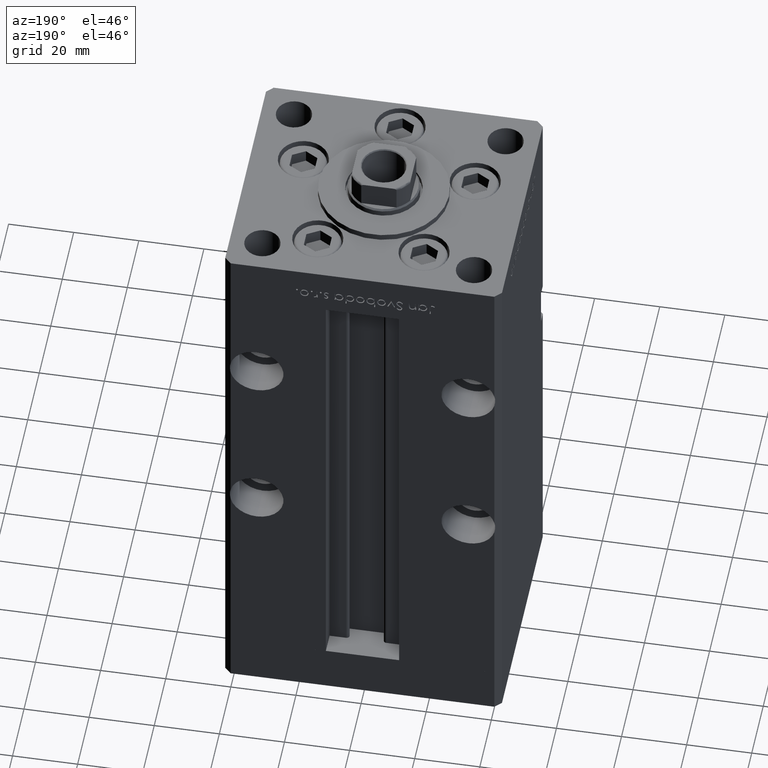
[diagram: clean part render]
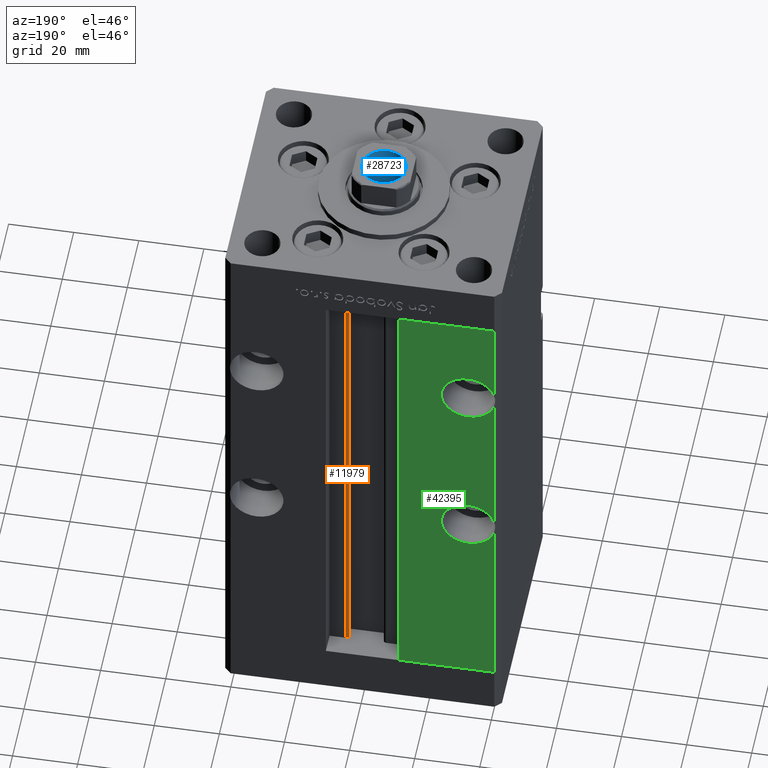
[diagram: same view with three faces highlighted in distinct colors, each labeled with its STEP entity id]
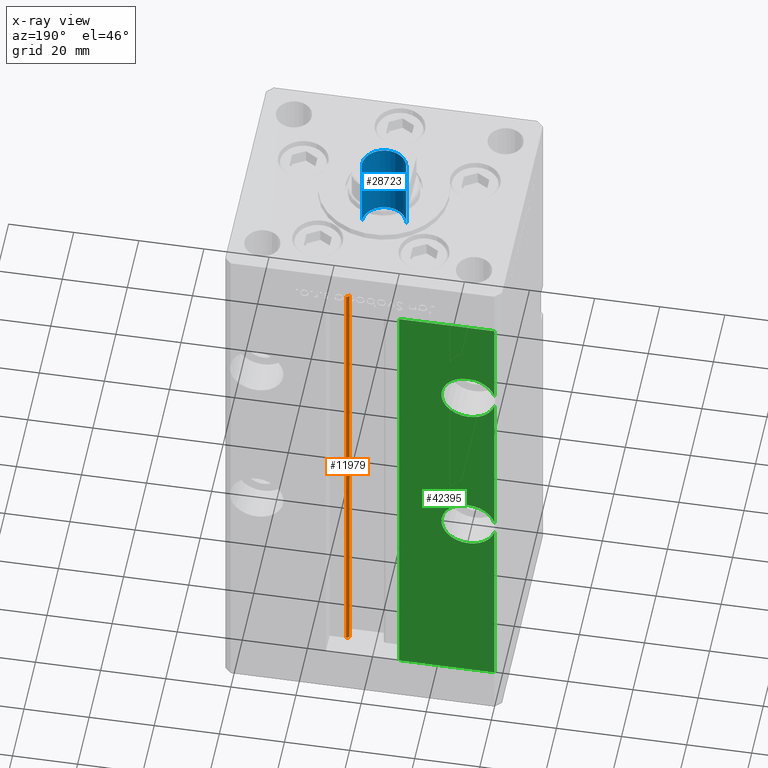
[diagram: x-ray of the same camera — body ghosted, the three highlighted faces saturated]
A machine part, auxiliary view with three faces highlighted in distinct colors.
The next image is the same camera in x-ray (body ghosted, the three faces saturated) — at least one of them is partly hidden behind the body in this view.
Their STEP definitions:

[orange] entity #11979 — the highlighted cylindrical surface (edge-blend (fillet) strip) has radius 0.9333 mm, axis along (0, 0, 1).
#124 = ORIENTED_EDGE ( 'NONE', *, *, #24910, .F. ) ;
#1605 = DIRECTION ( 'NONE',  ( -0.000000000000000000, -0.000000000000000000, 1.000000000000000000 ) ) ;
#1891 = DIRECTION ( 'NONE',  ( 1.000000000000000000, 0.000000000000000000, 0.000000000000000000 ) ) ;
#2122 = CARTESIAN_POINT ( 'NONE',  ( 5.375042956467947164, 29.59999999999899245, 0.000000000000000000 ) ) ;
#2178 = CIRCLE ( 'NONE', #46802, 0.9333333333340008142 ) ;
#3289 = VERTEX_POINT ( 'NONE', #6596 ) ;
#6596 = CARTESIAN_POINT ( 'NONE',  ( 6.183333333333997928, 31.00000000000000000, 0.000000000000000000 ) ) ;
#11506 = CARTESIAN_POINT ( 'NONE',  ( 6.183333333333997928, 31.00000000000000000, 0.000000000000000000 ) ) ;
#11725 = DIRECTION ( 'NONE',  ( -0.000000000000000000, -0.000000000000000000, 1.000000000000000000 ) ) ;
#11979 = ADVANCED_FACE ( 'NONE', ( #28646 ), #24888, .T. ) ;
#12491 = VECTOR ( 'NONE', #21817, 1000.000000000000000 ) ;
#12505 = EDGE_CURVE ( 'NONE', #22269, #3289, #41249, .T. ) ;
#14634 = ORIENTED_EDGE ( 'NONE', *, *, #12505, .F. ) ;
#18323 = CARTESIAN_POINT ( 'NONE',  ( 6.183333333333997928, 30.06666666666599852, 0.000000000000000000 ) ) ;
#20976 = VECTOR ( 'NONE', #1605, 1000.000000000000000 ) ;
#21817 = DIRECTION ( 'NONE',  ( -0.000000000000000000, -0.000000000000000000, 1.000000000000000000 ) ) ;
#21983 = CARTESIAN_POINT ( 'NONE',  ( 5.375042956467947164, 29.59999999999899245, 0.000000000000000000 ) ) ;
#22269 = VERTEX_POINT ( 'NONE', #21983 ) ;
#22651 = CARTESIAN_POINT ( 'NONE',  ( 6.183333333333997928, 31.00000000000000000, 148.5000000000000000 ) ) ;
#22890 = DIRECTION ( 'NONE',  ( -0.000000000000000000, -0.000000000000000000, -1.000000000000000000 ) ) ;
#22911 = CARTESIAN_POINT ( 'NONE',  ( 5.375042956467946276, 29.59999999999899600, 148.5000000000000000 ) ) ;
#24888 = CYLINDRICAL_SURFACE ( 'NONE', #36957, 0.9333333333340008142 ) ;
#24910 = EDGE_CURVE ( 'NONE', #3289, #45108, #52310, .T. ) ;
#26657 = DIRECTION ( 'NONE',  ( 1.000000000000000000, 0.000000000000000000, 0.000000000000000000 ) ) ;
#26930 = EDGE_CURVE ( 'NONE', #22269, #44286, #47500, .T. ) ;
#28646 = FACE_OUTER_BOUND ( 'NONE', #29424, .T. ) ;
#29424 = EDGE_LOOP ( 'NONE', ( #124, #14634, #36206, #33373 ) ) ;
#30380 = CARTESIAN_POINT ( 'NONE',  ( 6.183333333333997928, 30.06666666666599852, 148.5000000000000000 ) ) ;
#32138 = CARTESIAN_POINT ( 'NONE',  ( 6.183333333333997928, 30.06666666666599852, 0.000000000000000000 ) ) ;
#33373 = ORIENTED_EDGE ( 'NONE', *, *, #43914, .T. ) ;
#33523 = AXIS2_PLACEMENT_3D ( 'NONE', #18323, #22890, #26657 ) ;
#36206 = ORIENTED_EDGE ( 'NONE', *, *, #26930, .T. ) ;
#36957 = AXIS2_PLACEMENT_3D ( 'NONE', #32138, #11725, #48769 ) ;
#41249 = CIRCLE ( 'NONE', #33523, 0.9333333333340008142 ) ;
#43914 = EDGE_CURVE ( 'NONE', #44286, #45108, #2178, .T. ) ;
#44286 = VERTEX_POINT ( 'NONE', #22911 ) ;
#45108 = VERTEX_POINT ( 'NONE', #22651 ) ;
#46802 = AXIS2_PLACEMENT_3D ( 'NONE', #30380, #47000, #1891 ) ;
#47000 = DIRECTION ( 'NONE',  ( 0.000000000000000000, 0.000000000000000000, -1.000000000000000000 ) ) ;
#47500 = LINE ( 'NONE', #2122, #20976 ) ;
#48769 = DIRECTION ( 'NONE',  ( 1.000000000000000000, 0.000000000000000000, 0.000000000000000000 ) ) ;
#52310 = LINE ( 'NONE', #11506, #12491 ) ;

[blue] entity #28723 — the highlighted cylindrical surface (edge-blend (fillet) strip) has radius 6.75 mm, axis along (0, 0, 1).
#475 = VECTOR ( 'NONE', #51768, 1000.000000000000000 ) ;
#491 = DIRECTION ( 'NONE',  ( -0.000000000000000000, -0.000000000000000000, 1.000000000000000000 ) ) ;
#4136 = DIRECTION ( 'NONE',  ( 1.000000000000000000, 0.000000000000000000, 0.000000000000000000 ) ) ;
#7064 = ORIENTED_EDGE ( 'NONE', *, *, #12597, .F. ) ;
#7291 = DIRECTION ( 'NONE',  ( 1.000000000000000000, 0.000000000000000000, 0.000000000000000000 ) ) ;
#8466 = CIRCLE ( 'NONE', #14469, 6.749999999999995559 ) ;
#9224 = CARTESIAN_POINT ( 'NONE',  ( 0.000000000000000000, 0.000000000000000000, 155.7500000000000000 ) ) ;
#9846 = ORIENTED_EDGE ( 'NONE', *, *, #52063, .T. ) ;
#12059 = LINE ( 'NONE', #41059, #48773 ) ;
#12597 = EDGE_CURVE ( 'NONE', #47947, #29881, #36116, .T. ) ;
#14186 = ORIENTED_EDGE ( 'NONE', *, *, #52264, .T. ) ;
#14469 = AXIS2_PLACEMENT_3D ( 'NONE', #30558, #25477, #41847 ) ;
#14638 = AXIS2_PLACEMENT_3D ( 'NONE', #52658, #44617, #7291 ) ;
#17536 = CYLINDRICAL_SURFACE ( 'NONE', #26164, 6.749999999999995559 ) ;
#20494 = VERTEX_POINT ( 'NONE', #45803 ) ;
#21716 = CARTESIAN_POINT ( 'NONE',  ( -6.749999999999995559, 8.266365894244628417E-16, 155.4499999999999886 ) ) ;
#25084 = FACE_OUTER_BOUND ( 'NONE', #47859, .T. ) ;
#25477 = DIRECTION ( 'NONE',  ( 0.000000000000000000, 0.000000000000000000, 1.000000000000000000 ) ) ;
#26164 = AXIS2_PLACEMENT_3D ( 'NONE', #9224, #33413, #4136 ) ;
#28723 = ADVANCED_FACE ( 'NONE', ( #25084 ), #17536, .F. ) ;
#29881 = VERTEX_POINT ( 'NONE', #41934 ) ;
#30557 = EDGE_CURVE ( 'NONE', #29881, #20494, #36218, .T. ) ;
#30558 = CARTESIAN_POINT ( 'NONE',  ( 0.000000000000000000, 0.000000000000000000, 155.4499999999999886 ) ) ;
#32182 = CARTESIAN_POINT ( 'NONE',  ( 6.749999999999995559, 0.000000000000000000, 155.7500000000000000 ) ) ;
#32300 = ORIENTED_EDGE ( 'NONE', *, *, #30557, .F. ) ;
#32857 = VERTEX_POINT ( 'NONE', #21716 ) ;
#33413 = DIRECTION ( 'NONE',  ( -0.000000000000000000, -0.000000000000000000, 1.000000000000000000 ) ) ;
#33624 = CARTESIAN_POINT ( 'NONE',  ( -6.749999999999993783, 8.266365894244626445E-16, 130.7500000000000000 ) ) ;
#36116 = CIRCLE ( 'NONE', #14638, 6.749999999999993783 ) ;
#36218 = LINE ( 'NONE', #32182, #475 ) ;
#41059 = CARTESIAN_POINT ( 'NONE',  ( -6.749999999999995559, 8.266365894244628417E-16, 155.7500000000000000 ) ) ;
#41847 = DIRECTION ( 'NONE',  ( 1.000000000000000000, 0.000000000000000000, 0.000000000000000000 ) ) ;
#41934 = CARTESIAN_POINT ( 'NONE',  ( 6.749999999999993783, 0.000000000000000000, 130.7500000000000000 ) ) ;
#44617 = DIRECTION ( 'NONE',  ( -0.000000000000000000, -0.000000000000000000, 1.000000000000000000 ) ) ;
#45803 = CARTESIAN_POINT ( 'NONE',  ( 6.749999999999995559, 0.000000000000000000, 155.4499999999999886 ) ) ;
#47859 = EDGE_LOOP ( 'NONE', ( #7064, #9846, #14186, #32300 ) ) ;
#47947 = VERTEX_POINT ( 'NONE', #33624 ) ;
#48773 = VECTOR ( 'NONE', #491, 1000.000000000000000 ) ;
#51768 = DIRECTION ( 'NONE',  ( -0.000000000000000000, -0.000000000000000000, 1.000000000000000000 ) ) ;
#52063 = EDGE_CURVE ( 'NONE', #47947, #32857, #12059, .T. ) ;
#52264 = EDGE_CURVE ( 'NONE', #32857, #20494, #8466, .T. ) ;
#52658 = CARTESIAN_POINT ( 'NONE',  ( 0.000000000000000000, 0.000000000000000000, 130.7500000000000000 ) ) ;

[green] entity #42395 — the highlighted planar face has unit normal (0, -1, 0).
#267 = DIRECTION ( 'NONE',  ( 0.000000000000000000, -1.000000000000000000, 0.000000000000000000 ) ) ;
#1649 = LINE ( 'NONE', #9980, #43330 ) ;
#1778 = VECTOR ( 'NONE', #19251, 1000.000000000000000 ) ;
#1987 = EDGE_CURVE ( 'NONE', #26557, #45964, #44509, .T. ) ;
#2751 = CARTESIAN_POINT ( 'NONE',  ( -32.50000000000000000, 37.50000000000000000, 63.00000000000000000 ) ) ;
#3584 = CIRCLE ( 'NONE', #50724, 8.250000000000007105 ) ;
#3758 = VERTEX_POINT ( 'NONE', #18033 ) ;
#4120 = VECTOR ( 'NONE', #11381, 1000.000000000000000 ) ;
#4777 = AXIS2_PLACEMENT_3D ( 'NONE', #11778, #28165, #7742 ) ;
#6291 = ORIENTED_EDGE ( 'NONE', *, *, #39310, .F. ) ;
#6685 = CARTESIAN_POINT ( 'NONE',  ( -32.50000000000000000, 37.50000000000000000, 63.00000000000000000 ) ) ;
#7214 = DIRECTION ( 'NONE',  ( 0.000000000000000000, 0.000000000000000000, 1.000000000000000000 ) ) ;
#7742 = DIRECTION ( 'NONE',  ( 0.000000000000000000, 0.000000000000000000, -1.000000000000000000 ) ) ;
#9412 = AXIS2_PLACEMENT_3D ( 'NONE', #24734, #267, #16658 ) ;
#9887 = DIRECTION ( 'NONE',  ( -0.000000000000000000, -0.000000000000000000, -1.000000000000000000 ) ) ;
#9980 = CARTESIAN_POINT ( 'NONE',  ( -40.50000000000000711, 37.50000000000000000, 148.5000000000000000 ) ) ;
#10310 = CARTESIAN_POINT ( 'NONE',  ( -32.50000000000000000, 37.50000000000000000, 118.0000000000000000 ) ) ;
#11322 = ORIENTED_EDGE ( 'NONE', *, *, #1987, .T. ) ;
#11381 = DIRECTION ( 'NONE',  ( -0.000000000000000000, -0.000000000000000000, 1.000000000000000000 ) ) ;
#11775 = EDGE_CURVE ( 'NONE', #17886, #37990, #39392, .T. ) ;
#11778 = CARTESIAN_POINT ( 'NONE',  ( -32.50000000000000000, 37.50000000000000000, 118.0000000000000000 ) ) ;
#12303 = VECTOR ( 'NONE', #45613, 1000.000000000000000 ) ;
#12322 = CARTESIAN_POINT ( 'NONE',  ( -11.24999999999999822, 37.50000000000000000, 0.000000000000000000 ) ) ;
#12370 = AXIS2_PLACEMENT_3D ( 'NONE', #6685, #19312, #7214 ) ;
#13720 = CARTESIAN_POINT ( 'NONE',  ( -32.50000000000000000, 37.50000000000000000, 118.0000000000000000 ) ) ;
#14326 = EDGE_CURVE ( 'NONE', #26004, #3758, #3584, .T. ) ;
#14487 = ORIENTED_EDGE ( 'NONE', *, *, #14326, .F. ) ;
#14619 = CARTESIAN_POINT ( 'NONE',  ( -11.24999999999999822, 37.50000000000000000, 0.000000000000000000 ) ) ;
#14694 = CARTESIAN_POINT ( 'NONE',  ( -40.50000000000000711, 37.50000000000000000, 0.000000000000000000 ) ) ;
#14784 = DIRECTION ( 'NONE',  ( 0.000000000000000000, 1.000000000000000000, 0.000000000000000000 ) ) ;
#15109 = VERTEX_POINT ( 'NONE', #22675 ) ;
#15127 = CIRCLE ( 'NONE', #26283, 8.250000000000007105 ) ;
#15552 = CARTESIAN_POINT ( 'NONE',  ( -32.50000000000000000, 37.50000000000000000, 71.25000000000001421 ) ) ;
#15780 = DIRECTION ( 'NONE',  ( 1.000000000000000000, 0.000000000000000000, 0.000000000000000000 ) ) ;
#16074 = CARTESIAN_POINT ( 'NONE',  ( -32.50000000000000000, 37.50000000000000000, 109.7499999999999858 ) ) ;
#16135 = ORIENTED_EDGE ( 'NONE', *, *, #39980, .F. ) ;
#16658 = DIRECTION ( 'NONE',  ( 0.000000000000000000, -0.000000000000000000, -1.000000000000000000 ) ) ;
#17197 = FACE_OUTER_BOUND ( 'NONE', #47332, .T. ) ;
#17886 = VERTEX_POINT ( 'NONE', #24471 ) ;
#17920 = CIRCLE ( 'NONE', #24801, 8.250000000000007105 ) ;
#18033 = CARTESIAN_POINT ( 'NONE',  ( -32.50000000000000000, 37.50000000000000000, 54.75000000000000000 ) ) ;
#18100 = DIRECTION ( 'NONE',  ( 0.000000000000000000, 1.000000000000000000, -0.000000000000000000 ) ) ;
#18451 = CARTESIAN_POINT ( 'NONE',  ( -40.50000000000000711, 37.50000000000000000, 148.5000000000000000 ) ) ;
#18818 = CARTESIAN_POINT ( 'NONE',  ( -40.50000000000000711, 37.50000000000000000, 65.01556443707461597 ) ) ;
#19251 = DIRECTION ( 'NONE',  ( -0.000000000000000000, -0.000000000000000000, -1.000000000000000000 ) ) ;
#19312 = DIRECTION ( 'NONE',  ( 0.000000000000000000, 1.000000000000000000, 0.000000000000000000 ) ) ;
#20160 = EDGE_CURVE ( 'NONE', #52109, #37990, #46130, .T. ) ;
#21779 = ORIENTED_EDGE ( 'NONE', *, *, #26047, .F. ) ;
#22077 = DIRECTION ( 'NONE',  ( -0.000000000000000000, -0.000000000000000000, -1.000000000000000000 ) ) ;
#22277 = EDGE_CURVE ( 'NONE', #26557, #37564, #46657, .T. ) ;
#22318 = CARTESIAN_POINT ( 'NONE',  ( -32.50000000000000000, 37.50000000000000000, 63.00000000000000000 ) ) ;
#22675 = CARTESIAN_POINT ( 'NONE',  ( -40.50000000000000711, 37.50000000000000000, 115.9844355629253840 ) ) ;
#24471 = CARTESIAN_POINT ( 'NONE',  ( -40.50000000000000711, 37.50000000000000000, 60.98443556292539114 ) ) ;
#24734 = CARTESIAN_POINT ( 'NONE',  ( -11.24999999999999822, 37.50000000000000000, 148.5000000000000000 ) ) ;
#24800 = EDGE_CURVE ( 'NONE', #15109, #41146, #1649, .T. ) ;
#24801 = AXIS2_PLACEMENT_3D ( 'NONE', #13720, #25031, #25558 ) ;
#24995 = VERTEX_POINT ( 'NONE', #16074 ) ;
#25031 = DIRECTION ( 'NONE',  ( 0.000000000000000000, 1.000000000000000000, -0.000000000000000000 ) ) ;
#25558 = DIRECTION ( 'NONE',  ( 0.000000000000000000, 0.000000000000000000, -1.000000000000000000 ) ) ;
#26004 = VERTEX_POINT ( 'NONE', #15552 ) ;
#26047 = EDGE_CURVE ( 'NONE', #3758, #17886, #37369, .T. ) ;
#26283 = AXIS2_PLACEMENT_3D ( 'NONE', #10310, #18100, #38770 ) ;
#26557 = VERTEX_POINT ( 'NONE', #46770 ) ;
#26934 = DIRECTION ( 'NONE',  ( 0.000000000000000000, 0.000000000000000000, 1.000000000000000000 ) ) ;
#28081 = ORIENTED_EDGE ( 'NONE', *, *, #43350, .F. ) ;
#28165 = DIRECTION ( 'NONE',  ( 0.000000000000000000, 1.000000000000000000, -0.000000000000000000 ) ) ;
#29240 = ORIENTED_EDGE ( 'NONE', *, *, #45735, .F. ) ;
#29517 = CARTESIAN_POINT ( 'NONE',  ( -11.24999999999999822, 37.50000000000000000, 0.000000000000000000 ) ) ;
#30663 = ORIENTED_EDGE ( 'NONE', *, *, #11775, .F. ) ;
#31269 = LINE ( 'NONE', #14619, #4120 ) ;
#31348 = CIRCLE ( 'NONE', #4777, 8.250000000000007105 ) ;
#33587 = PLANE ( 'NONE',  #9412 ) ;
#33988 = VECTOR ( 'NONE', #15780, 1000.000000000000000 ) ;
#34255 = CIRCLE ( 'NONE', #47958, 8.250000000000007105 ) ;
#34595 = CARTESIAN_POINT ( 'NONE',  ( -40.50000000000000711, 37.50000000000000000, 148.5000000000000000 ) ) ;
#36986 = ORIENTED_EDGE ( 'NONE', *, *, #37453, .F. ) ;
#37369 = CIRCLE ( 'NONE', #12370, 8.250000000000007105 ) ;
#37453 = EDGE_CURVE ( 'NONE', #52109, #45964, #31269, .T. ) ;
#37564 = VERTEX_POINT ( 'NONE', #39042 ) ;
#37990 = VERTEX_POINT ( 'NONE', #14694 ) ;
#38437 = ORIENTED_EDGE ( 'NONE', *, *, #22277, .F. ) ;
#38770 = DIRECTION ( 'NONE',  ( 0.000000000000000000, 0.000000000000000000, -1.000000000000000000 ) ) ;
#39042 = CARTESIAN_POINT ( 'NONE',  ( -40.50000000000000711, 37.50000000000000000, 120.0155644370746018 ) ) ;
#39310 = EDGE_CURVE ( 'NONE', #37564, #50829, #17920, .T. ) ;
#39392 = LINE ( 'NONE', #18451, #1778 ) ;
#39980 = EDGE_CURVE ( 'NONE', #41146, #26004, #34255, .T. ) ;
#41146 = VERTEX_POINT ( 'NONE', #18818 ) ;
#42395 = ADVANCED_FACE ( 'NONE', ( #17197 ), #33587, .F. ) ;
#43041 = DIRECTION ( 'NONE',  ( 0.000000000000000000, 1.000000000000000000, 0.000000000000000000 ) ) ;
#43330 = VECTOR ( 'NONE', #22077, 1000.000000000000000 ) ;
#43350 = EDGE_CURVE ( 'NONE', #50829, #24995, #31348, .T. ) ;
#44509 = LINE ( 'NONE', #52554, #33988 ) ;
#45428 = ORIENTED_EDGE ( 'NONE', *, *, #20160, .T. ) ;
#45613 = DIRECTION ( 'NONE',  ( -1.000000000000000000, 0.000000000000000000, 0.000000000000000000 ) ) ;
#45735 = EDGE_CURVE ( 'NONE', #24995, #15109, #15127, .T. ) ;
#45964 = VERTEX_POINT ( 'NONE', #49210 ) ;
#46130 = LINE ( 'NONE', #29517, #12303 ) ;
#46657 = LINE ( 'NONE', #34595, #49247 ) ;
#46770 = CARTESIAN_POINT ( 'NONE',  ( -40.50000000000000711, 37.50000000000000000, 148.5000000000000000 ) ) ;
#47332 = EDGE_LOOP ( 'NONE', ( #52505, #29240, #28081, #6291, #38437, #11322, #36986, #45428, #30663, #21779, #14487, #16135 ) ) ;
#47958 = AXIS2_PLACEMENT_3D ( 'NONE', #2751, #43041, #26934 ) ;
#49210 = CARTESIAN_POINT ( 'NONE',  ( -11.24999999999999822, 37.50000000000000000, 148.5000000000000000 ) ) ;
#49247 = VECTOR ( 'NONE', #9887, 1000.000000000000000 ) ;
#50724 = AXIS2_PLACEMENT_3D ( 'NONE', #22318, #14784, #51813 ) ;
#50829 = VERTEX_POINT ( 'NONE', #50877 ) ;
#50877 = CARTESIAN_POINT ( 'NONE',  ( -32.50000000000000000, 37.50000000000000000, 126.2500000000000000 ) ) ;
#51813 = DIRECTION ( 'NONE',  ( 0.000000000000000000, 0.000000000000000000, 1.000000000000000000 ) ) ;
#52109 = VERTEX_POINT ( 'NONE', #12322 ) ;
#52505 = ORIENTED_EDGE ( 'NONE', *, *, #24800, .F. ) ;
#52554 = CARTESIAN_POINT ( 'NONE',  ( -11.24999999999999822, 37.50000000000000000, 148.5000000000000000 ) ) ;